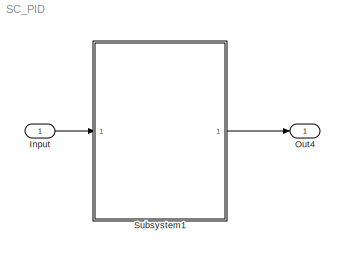
MODEL SC_PID
KIND model
CONFIG PreLoadFcn = K=10.8;\nTI=2.56;\nTD=0;\nu=0;
BLOCK [Inport] Input
  SID = 40
BLOCK [Outport] Out4
  SID = 47
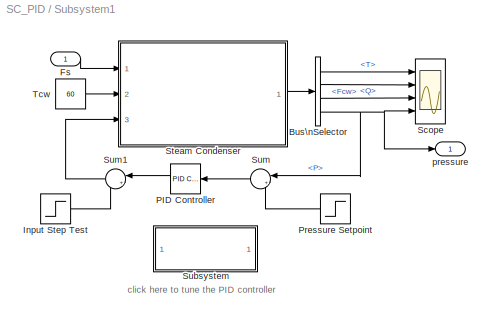
BLOCK [SubSystem] Subsystem1
  Ports = [1, 1]
  RequestExecContextInheritance = off
  SID = 43
BLOCK [BusSelector] Subsystem1/Bus\nSelector
  OutputSignals = T,Fcw,Q,P
  Ports = [1, 4]
  SID = 1
BLOCK [Inport] Subsystem1/Fs
  SID = 44
BLOCK [Step] Subsystem1/Input Step Test
  After = u
  SID = 3
  SampleTime = 0
  Time = 10
BLOCK [Reference] Subsystem1/PID Controller  REF=simulink_need_slupdate/PID Controller
  D = TD
  I = K/TI
  P = K
  Ports = [1, 1]
  RTWMemSecDataConstants = Inherit from model
  RTWMemSecDataInternal = Inherit from model
  RTWMemSecDataParameters = Inherit from model
  RTWMemSecFuncExecute = Inherit from model
  RTWMemSecFuncInitTerm = Inherit from model
  SID = 4
  SourceBlock = simulink_need_slupdate/PID Controller
  SourceProductBaseCode = SL
  SourceType = PID Controller
BLOCK [Step] Subsystem1/Pressure Setpoint
  After = 85
  Before = 90
  SID = 5
  SampleTime = 0
  Time = 10
BLOCK [Scope] Subsystem1/Scope
  Floating = off
  NumInputPorts = 4
  Ports = [4]
  SID = 6
  ScopeSpecificationString = Simulink.scopes.TimeScopeBlockCfg('CurrentConfiguration', extmgr.ConfigurationSet(extmgr.Configuration('Core','General UI',true),extmgr.Configuration('Core','Source UI',true),extmgr.Configuration('Sources','WiredSimulink',true,'DataLogging',true,'DataLoggingVariableName','y','DataLoggingSaveFormat','StructureWithTime','DataLoggingDecimation','1','DataLoggingDecimateData',true),extmgr.Configuration...<+3665ch>
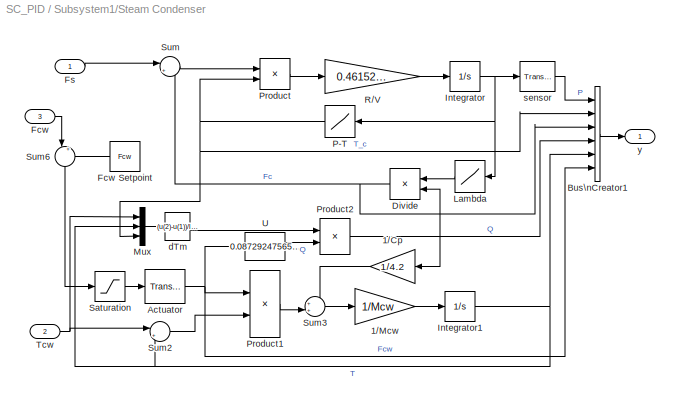
BLOCK [SubSystem] Subsystem1/Steam Condenser
  Ports = [3, 1]
  RequestExecContextInheritance = off
  SID = 7
BLOCK [Gain] Subsystem1/Steam Condenser/1//Cp
  Gain = 1/4.2
  OutDataTypeStr = Inherit: Same as input
  ParamDataTypeStr = Inherit: Same as input
  SID = 11
BLOCK [Gain] Subsystem1/Steam Condenser/1//Mcw
  Gain = 1/Mcw
  OutDataTypeStr = Inherit: Same as input
  ParamDataTypeStr = Inherit: Same as input
  SID = 12
BLOCK [Reference] Subsystem1/Steam Condenser/Actuator  REF=simulink_extras/Additional\nLinear/Transfer Fcn\n(with initial outputs)
  D = [tau 1]
  N = [1]
  Ports = [1, 1]
  SID = 13
  ShowPortLabels = on
  SourceBlock = simulink_extras/Additional\nLinear/Transfer Fcn\n(with initial outputs)
  SourceProductBaseCode = SL
  SourceType = Transfer Function with Initial Outputs
  U0 = Fcw
  Y0 = Fcw
BLOCK [BusCreator] Subsystem1/Steam Condenser/Bus\nCreator1
  DisplayOption = bar
  InheritFromInputs = on
  Inputs = 6
  Ports = [6, 1]
  SID = 14
BLOCK [Product] Subsystem1/Steam Condenser/Divide
  InputSameDT = on
  Inputs = /*
  OutDataTypeStr = Inherit: Same as first input
  Ports = [2, 1]
  RndMeth = Zero
  SID = 15
BLOCK [Inport] Subsystem1/Steam Condenser/Fcw
  Port = 3
  SID = 10
BLOCK [Constant] Subsystem1/Steam Condenser/Fcw Setpoint
  SID = 16
  Value = Fcw
BLOCK [Inport] Subsystem1/Steam Condenser/Fs
  SID = 8
BLOCK [Integrator] Subsystem1/Steam Condenser/Integrator
  InitialCondition = P
  Ports = [1, 1]
  SID = 17
BLOCK [Integrator] Subsystem1/Steam Condenser/Integrator1
  InitialCondition = T
  Ports = [1, 1]
  SID = 18
BLOCK [Lookup] Subsystem1/Steam Condenser/Lambda
  InputValues = [50 60 70 80 90 100 110]
  SID = 19
  Table = [2305.42 2293.64 2283.30 2274.05 2265.65 2257.92 2250.76]
BLOCK [Mux] Subsystem1/Steam Condenser/Mux
  DisplayOption = bar
  Inputs = 3
  Ports = [3, 1]
  SID = 20
BLOCK [Lookup] Subsystem1/Steam Condenser/P-T
  InputValues = [50 60 70 80 90 100 110]
  SID = 21
  Table = [81.3167 85.9258 89.9315 93.4854 96.6870 99.6059 102.2923]
BLOCK [Product] Subsystem1/Steam Condenser/Product
  InputSameDT = on
  OutDataTypeStr = Inherit: Same as first input
  Ports = [2, 1]
  RndMeth = Zero
  SID = 22
BLOCK [Product] Subsystem1/Steam Condenser/Product1
  InputSameDT = on
  OutDataTypeStr = Inherit: Same as first input
  Ports = [2, 1]
  RndMeth = Zero
  SID = 23
BLOCK [Product] Subsystem1/Steam Condenser/Product2
  InputSameDT = on
  Inputs = */
  OutDataTypeStr = Inherit: Same as first input
  Ports = [2, 1]
  RndMeth = Zero
  SID = 24
BLOCK [Gain] Subsystem1/Steam Condenser/R//V
  Gain = 0.461526/V
  OutDataTypeStr = Inherit: Same as input
  ParamDataTypeStr = Inherit: Same as input
  SID = 25
BLOCK [Saturate] Subsystem1/Steam Condenser/Saturation
  LowerLimit = 0
  SID = 26
  UpperLimit = 200
BLOCK [Sum] Subsystem1/Steam Condenser/Sum
  InputSameDT = on
  Inputs = |+-
  OutDataTypeStr = Inherit: Same as first input
  Ports = [2, 1]
  SID = 27
BLOCK [Sum] Subsystem1/Steam Condenser/Sum2
  InputSameDT = on
  Inputs = |+-
  OutDataTypeStr = Inherit: Same as first input
  Ports = [2, 1]
  SID = 28
BLOCK [Sum] Subsystem1/Steam Condenser/Sum3
  InputSameDT = on
  Inputs = ++|
  OutDataTypeStr = Inherit: Same as first input
  Ports = [2, 1]
  SID = 29
BLOCK [Sum] Subsystem1/Steam Condenser/Sum6
  InputSameDT = on
  Inputs = |++
  NameLocation = left
  OutDataTypeStr = Inherit: Same as first input
  Ports = [2, 1]
  SID = 30
BLOCK [Inport] Subsystem1/Steam Condenser/Tcw
  Port = 2
  SID = 9
BLOCK [Fcn] Subsystem1/Steam Condenser/U
  Expr = 0.0872924756541668/u^0.8+0.00073786772008033
  SID = 31
BLOCK [Fcn] Subsystem1/Steam Condenser/dTm
  Expr = (u(2)-u(1))/log((u(3)-u(1))/(u(3)-u(2)))
  SID = 32
BLOCK [Reference] Subsystem1/Steam Condenser/sensor  REF=simulink_extras/Additional\nLinear/Transfer Fcn\n(with initial outputs)
  D = [tau/2 1]
  N = [1]
  Ports = [1, 1]
  SID = 33
  ShowPortLabels = on
  SourceBlock = simulink_extras/Additional\nLinear/Transfer Fcn\n(with initial outputs)
  SourceProductBaseCode = SL
  SourceType = Transfer Function with Initial Outputs
  U0 = P
  Y0 = P
BLOCK [Outport] Subsystem1/Steam Condenser/y
  SID = 34
BLOCK [SubSystem] Subsystem1/Subsystem
  OpenFcn = K=0;TI=1;TD=0;u=1;                                    \nsim('SteamCondenser')                                 \n[Kp,tau,td]=ReactionCurve(y.time,y.signals(4).values);\ntd=td-10;                                             \nK=-(0.9/Kp)*(tau/td);                                 \nTI=3.3*td;                                            \nu=0;                                                  \nsim('Ste...<+13ch>
  Ports = []
  RequestExecContextInheritance = off
  SID = 35
BLOCK [Sum] Subsystem1/Sum
  InputSameDT = on
  Inputs = |+-
  OutDataTypeStr = Inherit: Same as first input
  Ports = [2, 1]
  SID = 36
BLOCK [Sum] Subsystem1/Sum1
  InputSameDT = on
  Inputs = |++
  OutDataTypeStr = Inherit: Same as first input
  Ports = [2, 1]
  SID = 37
BLOCK [Constant] Subsystem1/Tcw
  SID = 38
  Value = 60
  VectorParams1D = off
BLOCK [Outport] Subsystem1/pressure
  SID = 45
ANNOTATION Subsystem1: click here to tune the PID controller
LINE Input:1 -> Subsystem1:1
LINE Subsystem1/Bus\nSelector:1 -> Subsystem1/Scope:1
LINE Subsystem1/Bus\nSelector:2 -> Subsystem1/Scope:2
LINE Subsystem1/Bus\nSelector:3 -> Subsystem1/Scope:3
NET Subsystem1/Bus\nSelector:4 -> Subsystem1/Scope:4, Subsystem1/Sum:1, Subsystem1/pressure:1
LINE Subsystem1/Fs:1 -> Subsystem1/Steam Condenser:1
LINE Subsystem1/Input Step Test:1 -> Subsystem1/Sum1:2
LINE Subsystem1/PID Controller:1 -> Subsystem1/Sum1:1
LINE Subsystem1/Pressure Setpoint:1 -> Subsystem1/Sum:2
LINE Subsystem1/Steam Condenser/1//Cp:1 -> Subsystem1/Steam Condenser/Sum3:1
LINE Subsystem1/Steam Condenser/1//Mcw:1 -> Subsystem1/Steam Condenser/Integrator1:1
NET Subsystem1/Steam Condenser/Actuator:1 -> Subsystem1/Steam Condenser/Bus\nCreator1:6, Subsystem1/Steam Condenser/Product1:1, Subsystem1/Steam Condenser/U:1
LINE Subsystem1/Steam Condenser/Bus\nCreator1:1 -> Subsystem1/Steam Condenser/y:1
NET Subsystem1/Steam Condenser/Divide:1 -> Subsystem1/Steam Condenser/Bus\nCreator1:3, Subsystem1/Steam Condenser/Sum:2
LINE Subsystem1/Steam Condenser/Fcw Setpoint:1 -> Subsystem1/Steam Condenser/Sum6:2
LINE Subsystem1/Steam Condenser/Fcw:1 -> Subsystem1/Steam Condenser/Sum6:1
LINE Subsystem1/Steam Condenser/Fs:1 -> Subsystem1/Steam Condenser/Sum:1
NET Subsystem1/Steam Condenser/Integrator1:1 -> Subsystem1/Steam Condenser/Bus\nCreator1:5, Subsystem1/Steam Condenser/Mux:2, Subsystem1/Steam Condenser/Sum2:2
NET Subsystem1/Steam Condenser/Integrator:1 -> Subsystem1/Steam Condenser/Lambda:1, Subsystem1/Steam Condenser/P-T:1, Subsystem1/Steam Condenser/sensor:1
LINE Subsystem1/Steam Condenser/Lambda:1 -> Subsystem1/Steam Condenser/Divide:1
LINE Subsystem1/Steam Condenser/Mux:1 -> Subsystem1/Steam Condenser/dTm:1
NET Subsystem1/Steam Condenser/P-T:1 -> Subsystem1/Steam Condenser/Bus\nCreator1:2, Subsystem1/Steam Condenser/Mux:3, Subsystem1/Steam Condenser/Product:2
LINE Subsystem1/Steam Condenser/Product1:1 -> Subsystem1/Steam Condenser/Sum3:2
NET Subsystem1/Steam Condenser/Product2:1 -> Subsystem1/Steam Condenser/1//Cp:1, Subsystem1/Steam Condenser/Bus\nCreator1:4, Subsystem1/Steam Condenser/Divide:2
LINE Subsystem1/Steam Condenser/Product:1 -> Subsystem1/Steam Condenser/R//V:1
LINE Subsystem1/Steam Condenser/R//V:1 -> Subsystem1/Steam Condenser/Integrator:1
LINE Subsystem1/Steam Condenser/Saturation:1 -> Subsystem1/Steam Condenser/Actuator:1
LINE Subsystem1/Steam Condenser/Sum2:1 -> Subsystem1/Steam Condenser/Product1:2
LINE Subsystem1/Steam Condenser/Sum3:1 -> Subsystem1/Steam Condenser/1//Mcw:1
LINE Subsystem1/Steam Condenser/Sum6:1 -> Subsystem1/Steam Condenser/Saturation:1
LINE Subsystem1/Steam Condenser/Sum:1 -> Subsystem1/Steam Condenser/Product:1
NET Subsystem1/Steam Condenser/Tcw:1 -> Subsystem1/Steam Condenser/Mux:1, Subsystem1/Steam Condenser/Sum2:1
LINE Subsystem1/Steam Condenser/U:1 -> Subsystem1/Steam Condenser/Product2:2
LINE Subsystem1/Steam Condenser/dTm:1 -> Subsystem1/Steam Condenser/Product2:1
LINE Subsystem1/Steam Condenser/sensor:1 -> Subsystem1/Steam Condenser/Bus\nCreator1:1
LINE Subsystem1/Steam Condenser:1 -> Subsystem1/Bus\nSelector:1
LINE Subsystem1/Sum1:1 -> Subsystem1/Steam Condenser:3
LINE Subsystem1/Sum:1 -> Subsystem1/PID Controller:1
LINE Subsystem1/Tcw:1 -> Subsystem1/Steam Condenser:2
LINE Subsystem1:1 -> Out4:1
note: NET lines group one-source signal fan-out (src -> all destinations, sorted); 1:1 wires keep LINE
